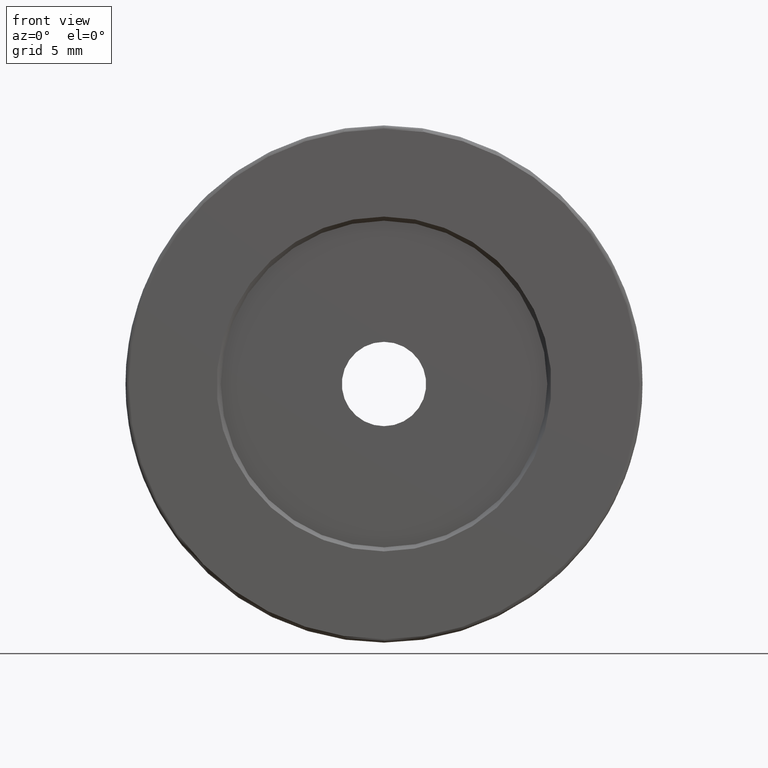
[diagram: clean part render]
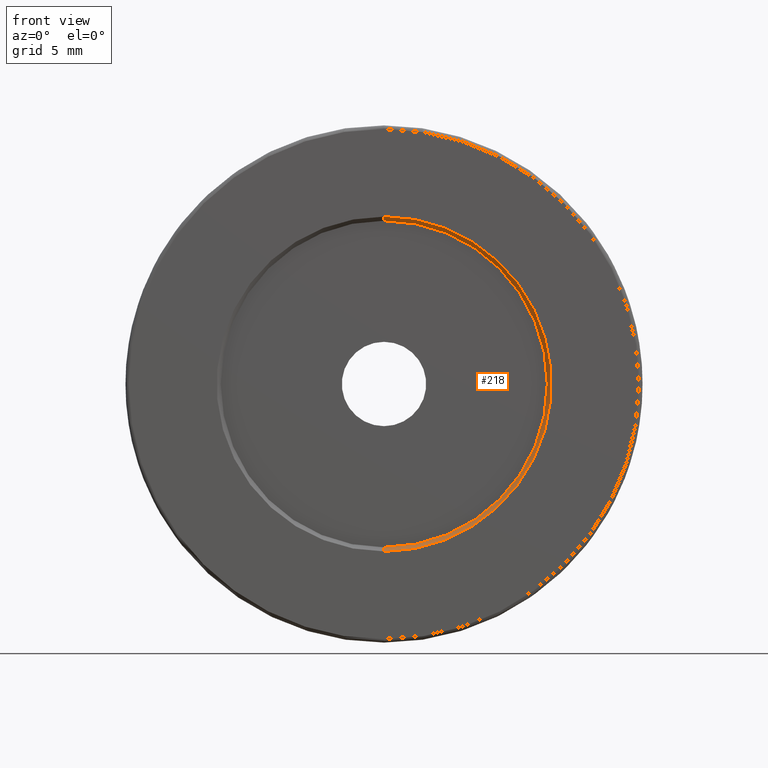
[diagram: same view with one face highlighted and labeled with its STEP entity id]
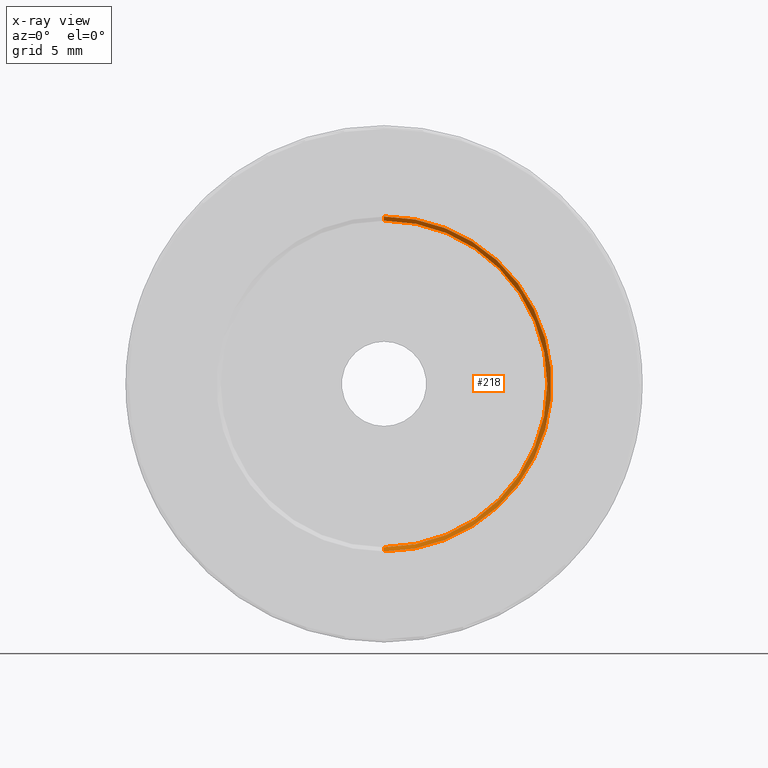
[diagram: x-ray of the same camera — body ghosted, the highlighted face saturated]
A machine part, front view. The second image highlights one B-rep face of the part: STEP entity #218.
The next image is the same camera in x-ray: the body ghosted, the highlighted face saturated — about 0% of this face is hidden behind the body in this view.
In plain terms, the highlighted conical surface has half-angle 45 deg.
Its self-contained STEP definition (entity closure, byte-faithful):
#5 = AXIS2_PLACEMENT_3D ( 'NONE', #384, #288, #250 ) ;
#6 = DIRECTION ( 'NONE',  ( 0.000000000000000000, 0.000000000000000000, 1.000000000000000000 ) ) ;
#14 = DIRECTION ( 'NONE',  ( 0.000000000000000000, 1.000000000000000000, 0.000000000000000000 ) ) ;
#53 = EDGE_CURVE ( 'NONE', #74, #420, #452, .T. ) ;
#68 = VECTOR ( 'NONE', #429, 1000.000000000000000 ) ;
#74 = VERTEX_POINT ( 'NONE', #127 ) ;
#80 = ORIENTED_EDGE ( 'NONE', *, *, #186, .T. ) ;
#88 = CARTESIAN_POINT ( 'NONE',  ( -7.546808913101048510, -3.393595127302727832, 38.00000000000000000 ) ) ;
#89 = CARTESIAN_POINT ( 'NONE',  ( -7.546808913101048510, -3.093595127302728010, 25.99999999999999645 ) ) ;
#93 = CARTESIAN_POINT ( 'NONE',  ( -7.546808913101046734, -3.093595127302728010, 50.00000000000000000 ) ) ;
#120 = LINE ( 'NONE', #355, #68 ) ;
#127 = CARTESIAN_POINT ( 'NONE',  ( -7.546808913101046734, -3.393595127302727832, 50.29999999999999716 ) ) ;
#130 = AXIS2_PLACEMENT_3D ( 'NONE', #428, #219, #338 ) ;
#140 = VERTEX_POINT ( 'NONE', #93 ) ;
#186 = EDGE_CURVE ( 'NONE', #140, #503, #224, .T. ) ;
#189 = EDGE_LOOP ( 'NONE', ( #299, #80, #289, #216 ) ) ;
#216 = ORIENTED_EDGE ( 'NONE', *, *, #53, .F. ) ;
#218 = ADVANCED_FACE ( 'NONE', ( #499 ), #488, .F. ) ;
#219 = DIRECTION ( 'NONE',  ( -0.000000000000000000, -1.000000000000000000, -0.000000000000000000 ) ) ;
#224 = CIRCLE ( 'NONE', #5, 12.00000000000000355 ) ;
#229 = DIRECTION ( 'NONE',  ( 0.000000000000000000, -0.7071067811865536790, -0.7071067811865414665 ) ) ;
#250 = DIRECTION ( 'NONE',  ( 0.000000000000000000, 0.000000000000000000, 1.000000000000000000 ) ) ;
#288 = DIRECTION ( 'NONE',  ( -0.000000000000000000, 1.000000000000000000, -0.000000000000000000 ) ) ;
#289 = ORIENTED_EDGE ( 'NONE', *, *, #418, .T. ) ;
#299 = ORIENTED_EDGE ( 'NONE', *, *, #460, .F. ) ;
#305 = CARTESIAN_POINT ( 'NONE',  ( -7.546808913101048510, -3.393595127302727832, 25.69999999999999929 ) ) ;
#310 = LINE ( 'NONE', #305, #471 ) ;
#338 = DIRECTION ( 'NONE',  ( 0.000000000000000000, 0.000000000000000000, -1.000000000000000000 ) ) ;
#355 = CARTESIAN_POINT ( 'NONE',  ( -7.546808913101046734, -3.393595127302727832, 50.29999999999999716 ) ) ;
#384 = CARTESIAN_POINT ( 'NONE',  ( -7.546808913101048510, -3.093595127302728010, 38.00000000000000000 ) ) ;
#391 = CARTESIAN_POINT ( 'NONE',  ( -7.546808913101048510, -3.393595127302727832, 25.69999999999999929 ) ) ;
#418 = EDGE_CURVE ( 'NONE', #503, #420, #310, .T. ) ;
#420 = VERTEX_POINT ( 'NONE', #391 ) ;
#428 = CARTESIAN_POINT ( 'NONE',  ( -7.546808913101048510, -3.393595127302727832, 38.00000000000000000 ) ) ;
#429 = DIRECTION ( 'NONE',  ( 8.659560562354857670E-17, -0.7071067811865536790, 0.7071067811865414665 ) ) ;
#452 = CIRCLE ( 'NONE', #470, 12.29999999999999893 ) ;
#460 = EDGE_CURVE ( 'NONE', #140, #74, #120, .T. ) ;
#470 = AXIS2_PLACEMENT_3D ( 'NONE', #88, #14, #6 ) ;
#471 = VECTOR ( 'NONE', #229, 1000.000000000000000 ) ;
#488 = CONICAL_SURFACE ( 'NONE', #130, 12.29999999999999893, 0.7853981633974396193 ) ;
#499 = FACE_OUTER_BOUND ( 'NONE', #189, .T. ) ;
#503 = VERTEX_POINT ( 'NONE', #89 ) ;